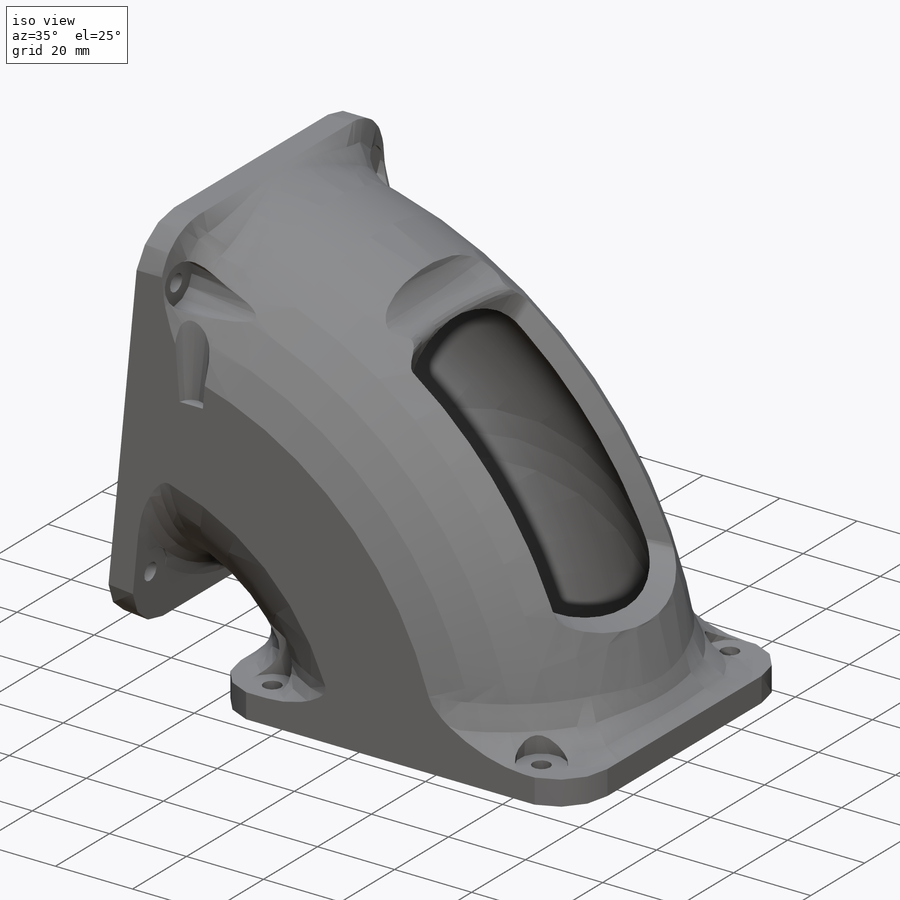
[diagram: iso view]
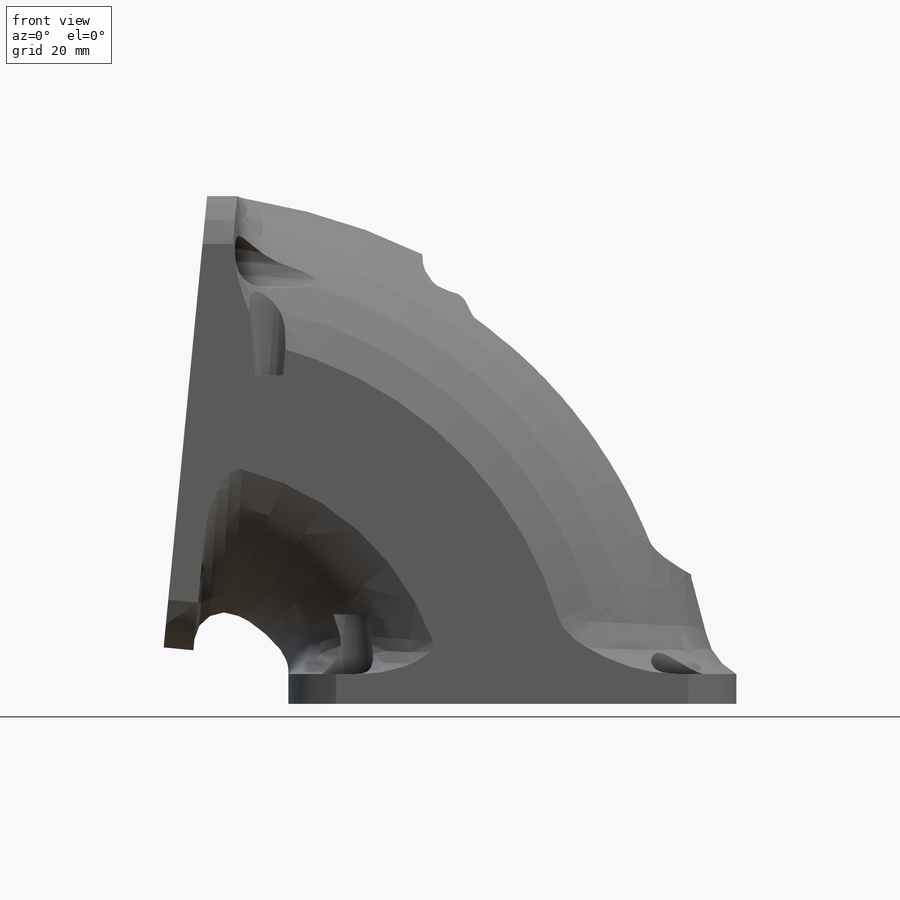
[diagram: front view]
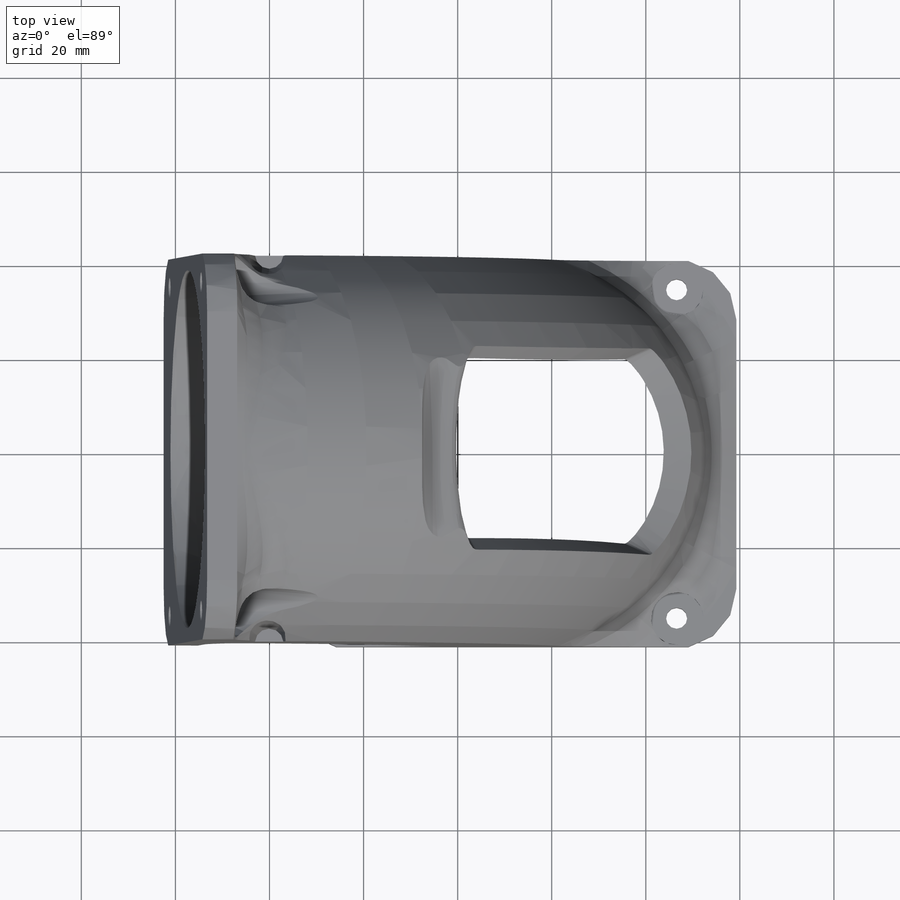
[diagram: top view]
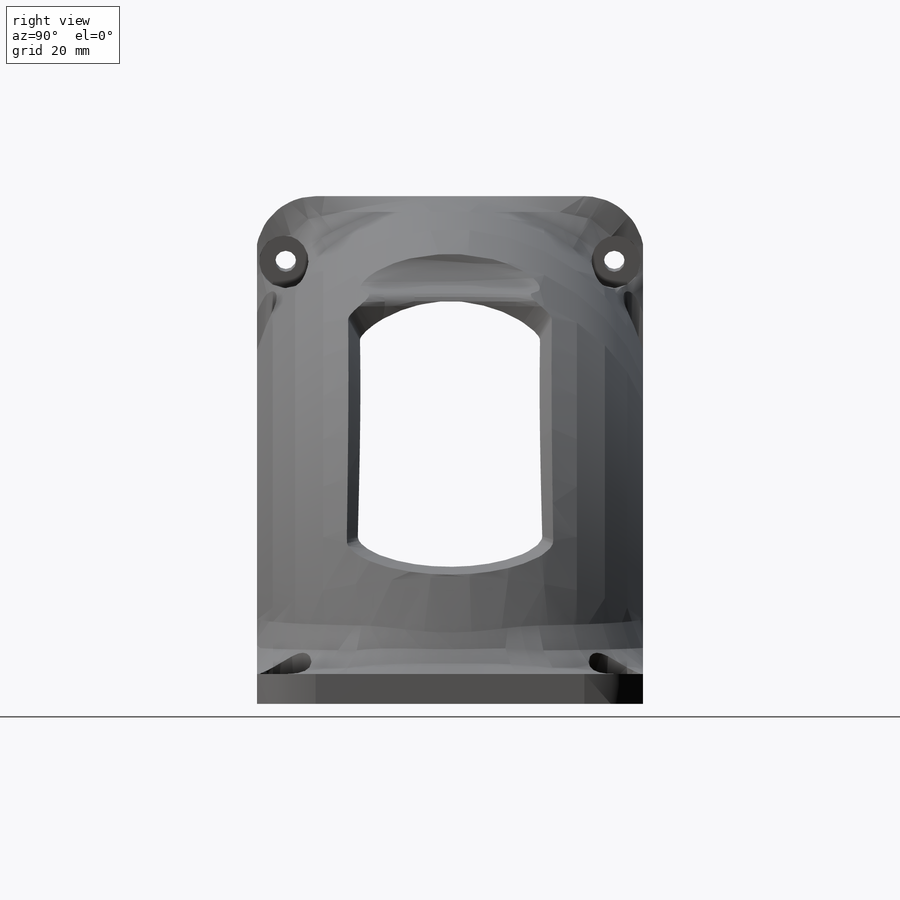
[diagram: right view]
SOLIDWORKS PART (.sldprt)
format: sldprt  version: not decoded by parser v0  size: 780,288 bytes
history: native  units: mm
features: sketch x24, cut_extrude x11, plane x6, fillet x4, extrude x2, material x1, sweep x1 (+13 scaffold rows collapsed)
feature tree (62):
  scaffold x13  (default folders/planes/origin — collapsed)
  material  "ABS"
  sketch  "Sketch1"  dims[c1.D9=76.2mm c1.D14=76.2mm c1.D22=12.7mm c1.D1=419.1mm c1.D2=101.6mm c1.D3=19.05mm c1.D4=19.05mm c1.D5=~447.578732mm c2.D5=84.5deg c2.D6=40.0mm c2.D7=400.0mm c2.D8=95.25mm c2.D9=10.0mm c2.D10=20.0mm c2.D11=114.3mm c2.D12=200.025mm c2.D13=95.25mm c2.D14=6.35mm c2.D15=127.0mm c2.D16=95.25mm c2.D17=203.2mm c3.D12=95.25mm c3.D10=9.525mm c3.D13=9.525mm c3.D14=76.2mm c3.D9=76.2mm c4.D14=~29.170225mm c4.D9=9.525mm c4.D16=82.55mm c4.D12=76.2mm c5.D14=25.4mm c5.D16=9.525mm c5.D18=6.35mm c5.D19=50.8mm c5.D20=44.45mm c5.D21=6.35mm c5.D22=50.8mm c6.D22=~64.798876deg c7.D22=50.8mm c7.D23=6.35mm]
  sketch  "Sketch2"  dims[c1.D1=33.3375mm c1.D2=71.4375mm c2.D1=38.1mm c2.D2=25.4mm]
  plane  "Plane1"
  sketch  "Sketch3"  dims[D1=76.2mm D2=5.08mm]
  sweep  "Sweep1"
  sketch  "Sketch4"  dims[D3=81.28mm D1=82.55mm D2=95.25mm]
  extrude  "Boss-Extrude1"  Depth=12.7mm
  sketch  "Sketch9"
  cut_extrude  "Cut-Extrude4"  Depth=2.54mm
  sketch  "Sketch5"
  cut_extrude  "Cut-Extrude1"  [1 undecoded]
  sketch  "Sketch6"  dims[D1=6.35mm]
  cut_extrude  "Cut-Extrude2"  Depth=6.35mm
  sketch  "Sketch10"  dims[D1=19.05mm]
  sketch  "Sketch7"  dims[D1=19.05mm]
  extrude  "Boss-Extrude2"  Depth=6.35mm
  sketch  "Sketch8"
  cut_extrude  "Cut-Extrude3"  [1 undecoded]
  fillet  "Fillet2"  Radius=12.7mm
  fillet  "Fillet3"  Radius=6.35mm
  fillet  "Fillet4"  Radius=12.7mm
  sketch  "Sketch11"  dims[D1=45.0deg]
  plane  "Plane2"
  sketch  "Sketch12"  dims[c1.D5=50.8mm c1.D1=38.1mm c1.D2=76.2mm c1.D3=~60.45002mm c2.D3=60.0deg c2.D4=~65.049301mm c3.D4=30.0deg]
  sketch  "3DSketch2"  dims[c1.D1=50000.0mm c2.D1=20.0deg c2.D2=~37.395639mm c2.D4=38.1mm c2.D3=~115.651785mm c3.D3=55.0deg c3.D4=50000.0mm c3.D2=6.35mm c4.D4=6.35mm]
  sketch  "3DSketch3"
  plane  "Plane3"
  sketch  "Sketch15"
  plane  "Plane4"
  sketch  "Sketch16"
  sketch  "3DSketch6"
  sketch  "Sketch17"  dims[D1=15.875mm]
  cut_extrude  "Cut-Extrude6"  Depth=2.54mm
  fillet  "Fillet5"  Radius=2.54mm
  sketch  "Sketch18"  dims[D2=4.5mm D1=69.85mm]
  cut_extrude  "Cut-Extrude7"  Depth=12.7mm
  plane  "Plane5"  Offset=6.35mm
  sketch  "Sketch19"  dims[D1=11.43mm]
  cut_extrude  "Cut-Extrude8"  Depth=12.7mm
  sketch  "Sketch21"  dims[D4=4.5mm D1=12.7mm D2=82.55mm D3=69.85mm]
  cut_extrude  "Cut-Extrude9"  Depth=12.7mm
  plane  "Plane6"  Offset=6.35mm
  sketch  "Sketch23"  dims[D1=11.43mm]
  cut_extrude  "Cut-Extrude10"  Depth=19.05mm
  sketch  "Sketch24"  dims[D2=12.7mm D1=13.208mm]
  cut_extrude  "Cut-Extrude13"  Depth=38.1mm
  sketch  "Sketch25"  dims[D1=0.254mm]
  cut_extrude  "Cut-Extrude15"  [1 undecoded]
decode coverage: 31 of 42 modeling features carry decoded parameters
note: ~ marks probable driven/reference dimensions
note: 3 parameter values undecoded
summary: no parameter record found for 3 features
note: suppression state not decoded; provenance and decode notes live in map.json
